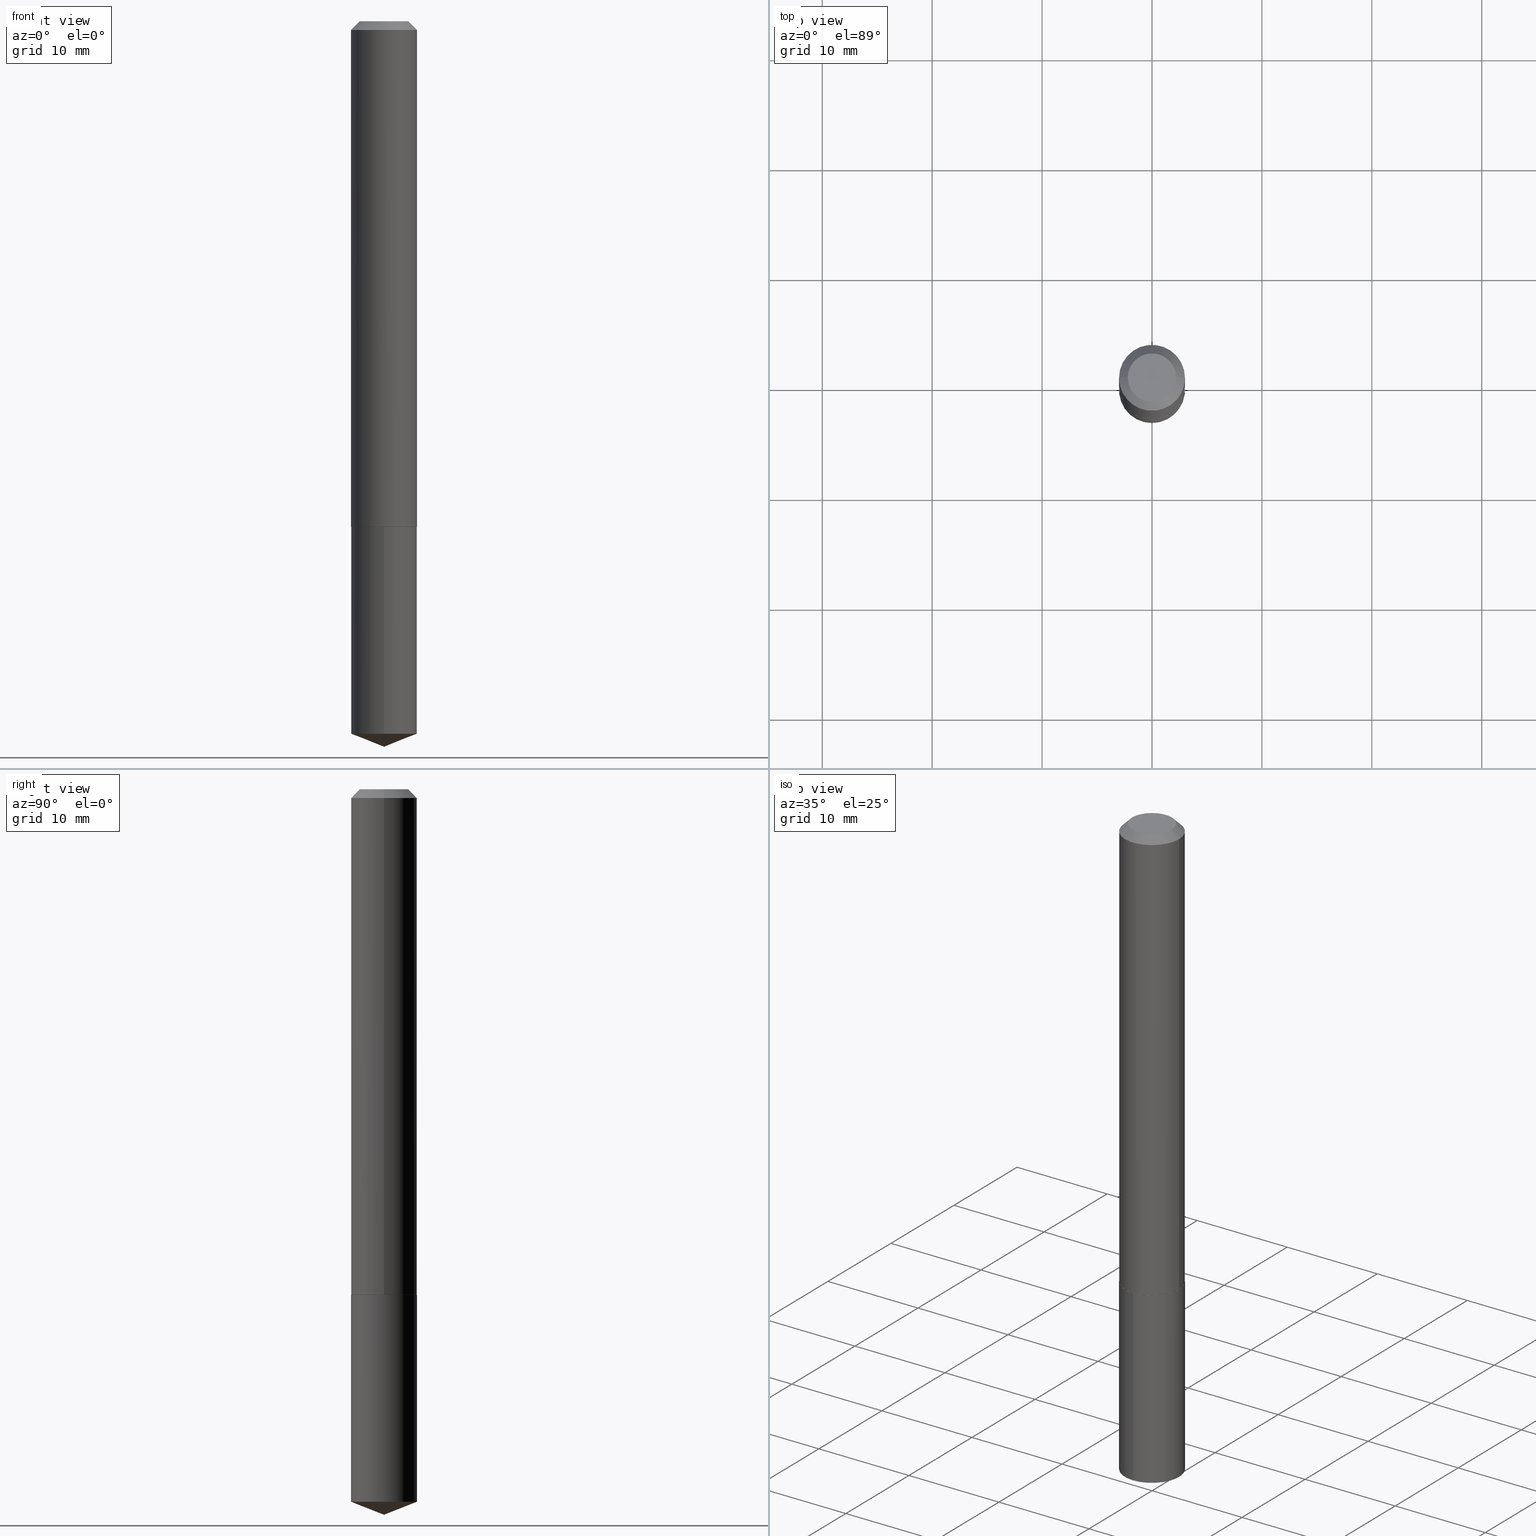
[diagram: canonical four-view strip — front | top / right | iso, engineering-drawing reading convention]
A machine part, canonical four-view strip (front | top / right | iso — engineering-drawing reading convention). The complete STEP part file that produces these views, byte-faithful:
ISO-10303-21;
HEADER;
FILE_DESCRIPTION (( 'STEP AP203' ),
    '1' );
FILE_NAME ('66430.STEP',
    '2024-04-23T12:50:24',
    ( '' ),
    ( '' ),
    'SwSTEP 2.0',
    'SolidWorks 2023',
    '' );
FILE_SCHEMA (( 'CONFIG_CONTROL_DESIGN' ));
ENDSEC;

DATA;
#1 = FACE_OUTER_BOUND ( 'NONE', #236, .T. ) ;
#2 = VECTOR ( 'NONE', #192, 39.37007874015748143 ) ;
#3 = CYLINDRICAL_SURFACE ( 'NONE', #261, 0.1181000000000001215 ) ;
#4 = ORIENTED_EDGE ( 'NONE', *, *, #358, .T. ) ;
#5 = MANIFOLD_SOLID_BREP ( 'Body-Move/Copy2[1]', #204 ) ;
#6 = COORDINATED_UNIVERSAL_TIME_OFFSET ( 5, 0, .BEHIND. ) ;
#7 = EDGE_CURVE ( 'NONE', #353, #266, #88, .T. ) ;
#8 = DIRECTION ( 'NONE',  ( 2.445468806185136597E-29, -3.491481338843145583E-15, -1.000000000000000000 ) ) ;
#9 = LOCAL_TIME ( 8, 50, 24.00000000000000000, #197 ) ;
#10 = EDGE_LOOP ( 'NONE', ( #159, #301, #288, #242 ) ) ;
#11 = APPROVAL_ROLE ( '' ) ;
#12 = AXIS2_PLACEMENT_3D ( 'NONE', #96, #129, #132 ) ;
#13 = CARTESIAN_POINT ( 'NONE',  ( -0.1176000000000006762, -5.484825220216944340E-15, -1.810999999999999943 ) ) ;
#14 = VERTEX_POINT ( 'NONE', #227 ) ;
#15 = DIRECTION ( 'NONE',  ( -6.497071151882117470E-15, -0.9304175679820243516, 0.3665012267242979127 ) ) ;
#16 = CARTESIAN_POINT ( 'NONE',  ( -8.990949888775337144E-28, 1.284083869569900402E-13, 36.77167874015748339 ) ) ;
#17 = APPROVAL_DATE_TIME ( #384, #230 ) ;
#18 = AXIS2_PLACEMENT_3D ( 'NONE', #292, #63, #30 ) ;
#19 = DATE_AND_TIME ( #285, #33 ) ;
#20 = PERSON_AND_ORGANIZATION_ROLE ( 'design_supplier' ) ;
#21 = APPLICATION_CONTEXT ( 'configuration controlled 3d designs of mechanical parts and assemblies' ) ;
#22 = CC_DESIGN_SECURITY_CLASSIFICATION ( #328, ( #127 ) ) ;
#23 = PERSON_AND_ORGANIZATION_ROLE ( 'creator' ) ;
#24 = CIRCLE ( 'NONE', #62, 0.1180999999999999966 ) ;
#25 = ORIENTED_EDGE ( 'NONE', *, *, #324, .F. ) ;
#26 = ORIENTED_EDGE ( 'NONE', *, *, #373, .F. ) ;
#27 = ORIENTED_EDGE ( 'NONE', *, *, #181, .T. ) ;
#28 = DIRECTION ( 'NONE',  ( -2.445468806185136597E-29, 3.491481338843145583E-15, 1.000000000000000000 ) ) ;
#29 = ADVANCED_FACE ( 'NONE', ( #71 ), #337, .T. ) ;
#30 = DIRECTION ( 'NONE',  ( 6.982962677686265922E-15, 1.000000000000000000, -3.492019322168117950E-15 ) ) ;
#31 = CARTESIAN_POINT ( 'NONE',  ( 4.428744008001282238E-29, -6.323072704644935995E-15, -1.810999999999999943 ) ) ;
#32 = DIRECTION ( 'NONE',  ( -2.445468806185136597E-29, 3.491481338843145583E-15, 1.000000000000000000 ) ) ;
#33 = LOCAL_TIME ( 8, 50, 24.00000000000000000, #203 ) ;
#34 = PRODUCT_DEFINITION ( 'UNKNOWN', '', #127, #297 ) ;
#35 = ORIENTED_EDGE ( 'NONE', *, *, #175, .T. ) ;
#36 = FACE_OUTER_BOUND ( 'NONE', #202, .T. ) ;
#37 = CONICAL_SURFACE ( 'NONE', #276, 0.1180999999999999966, 0.7853981633974450594 ) ;
#38 = EDGE_LOOP ( 'NONE', ( #93, #125, #195, #212 ) ) ;
#39 = CARTESIAN_POINT ( 'NONE',  ( -0.1181000000000002326, -5.482175993042835505E-15, -1.810499999999999998 ) ) ;
#40 = LINE ( 'NONE', #74, #107 ) ;
#41 = EDGE_CURVE ( 'NONE', #271, #14, #379, .T. ) ;
#42 = CIRCLE ( 'NONE', #237, 0.08684999999999999665 ) ;
#43 = CARTESIAN_POINT ( 'NONE',  ( 6.240262586935111587E-29, -8.910237091558793820E-15, -2.551879172829875309 ) ) ;
#44 = ORIENTED_EDGE ( 'NONE', *, *, #175, .F. ) ;
#45 = DIRECTION ( 'NONE',  ( 1.000000000000000000, -6.982962677686266711E-15, 0.000000000000000000 ) ) ;
#46 = FACE_OUTER_BOUND ( 'NONE', #83, .T. ) ;
#47 = DIRECTION ( 'NONE',  ( -2.445093134437186634E-29, 3.492019322168117950E-15, 1.000000000000000000 ) ) ;
#48 = PERSON_AND_ORGANIZATION ( #110, #282 ) ;
#49 = EDGE_CURVE ( 'NONE', #333, #338, #24, .T. ) ;
#50 = LINE ( 'NONE', #226, #161 ) ;
#51 = EDGE_CURVE ( 'NONE', #248, #389, #131, .T. ) ;
#52 = VECTOR ( 'NONE', #133, 39.37007874015748143 ) ;
#53 = APPROVAL_DATE_TIME ( #170, #108 ) ;
#54 = CARTESIAN_POINT ( 'NONE',  ( 7.642090019328603538E-31, -1.091087918388490390E-16, -0.03125000000000021511 ) ) ;
#55 = CONICAL_SURFACE ( 'NONE', #174, 99.94676754583970535, 1.195550537616118625 ) ;
#56 = ORIENTED_EDGE ( 'NONE', *, *, #324, .T. ) ;
#57 = CARTESIAN_POINT ( 'NONE',  ( 4.428744008001282238E-29, -6.323072704644935995E-15, -1.810999999999999943 ) ) ;
#58 = VERTEX_POINT ( 'NONE', #13 ) ;
#59 = CARTESIAN_POINT ( 'NONE',  ( 7.642090019328603538E-31, -1.091087918388490390E-16, -0.03125000000000021511 ) ) ;
#60 = AXIS2_PLACEMENT_3D ( 'NONE', #31, #245, #187 ) ;
#61 = CARTESIAN_POINT ( 'NONE',  ( 4.427521273598189436E-29, -6.321326963975514491E-15, -1.810499999999999998 ) ) ;
#62 = AXIS2_PLACEMENT_3D ( 'NONE', #251, #219, #306 ) ;
#63 = DIRECTION ( 'NONE',  ( 2.445093134437186353E-29, -3.492019322168117950E-15, -1.000000000000000000 ) ) ;
#64 = DIRECTION ( 'NONE',  ( -2.445093134437186634E-29, 3.492019322168117950E-15, 1.000000000000000000 ) ) ;
#65 = ADVANCED_FACE ( 'NONE', ( #279 ), #55, .T. ) ;
#66 = DIRECTION ( 'NONE',  ( 1.000000000000000000, -6.982962677686266711E-15, 4.876232708448512900E-29 ) ) ;
#67 = DIRECTION ( 'NONE',  ( 1.000000000000000000, -6.982962677686266711E-15, 4.876232708448512900E-29 ) ) ;
#68 = AXIS2_PLACEMENT_3D ( 'NONE', #73, #308, #191 ) ;
#69 = ADVANCED_FACE ( 'NONE', ( #46 ), #37, .T. ) ;
#70 = ORIENTED_EDGE ( 'NONE', *, *, #215, .T. ) ;
#71 = FACE_OUTER_BOUND ( 'NONE', #280, .T. ) ;
#72 = CONICAL_SURFACE ( 'NONE', #86, 0.1181000000000002326, 0.7853981633971067744 ) ;
#73 = CARTESIAN_POINT ( 'NONE',  ( 4.428744008001282238E-29, -6.323072704644935995E-15, -1.810999999999999943 ) ) ;
#74 = CARTESIAN_POINT ( 'NONE',  ( 6.353330000521585085E-29, -9.073663006721638693E-15, -2.598399999999999821 ) ) ;
#75 = DIRECTION ( 'NONE',  ( -2.438088387897960049E-29, 3.491481338843145188E-15, 1.000000000000000000 ) ) ;
#76 = EDGE_CURVE ( 'NONE', #250, #333, #50, .T. ) ;
#77 = APPROVAL_ROLE ( '' ) ;
#78 = AXIS2_PLACEMENT_3D ( 'NONE', #59, #28, #146 ) ;
#79 = CONICAL_SURFACE ( 'NONE', #387, 0.1181000000000002326, 0.7853981633971067744 ) ;
#80 = DATE_AND_TIME ( #106, #360 ) ;
#81 = PERSON_AND_ORGANIZATION ( #110, #282 ) ;
#82 = CARTESIAN_POINT ( 'NONE',  ( 6.353330000521585085E-29, -9.073663006721638693E-15, -2.598399999999999821 ) ) ;
#83 = EDGE_LOOP ( 'NONE', ( #374, #4, #56, #112 ) ) ;
#84 = DIRECTION ( 'NONE',  ( -2.445468806185136877E-29, 3.491481338843145188E-15, 1.000000000000000000 ) ) ;
#85 = DIRECTION ( 'NONE',  ( -2.445093134437186634E-29, 3.492019322168117950E-15, 1.000000000000000000 ) ) ;
#86 = AXIS2_PLACEMENT_3D ( 'NONE', #222, #160, #45 ) ;
#87 = DIRECTION ( 'NONE',  ( -6.982962677686265922E-15, -1.000000000000000000, 4.626330217890369336E-15 ) ) ;
#88 = CIRCLE ( 'NONE', #12, 0.1181000000000002326 ) ;
#89 = CARTESIAN_POINT ( 'NONE',  ( 8.391509709327224719E-16, 0.1180999999999936823, -1.811000000000000387 ) ) ;
#90 = LINE ( 'NONE', #89, #113 ) ;
#91 = FACE_OUTER_BOUND ( 'NONE', #10, .T. ) ;
#92 = CC_DESIGN_PERSON_AND_ORGANIZATION_ASSIGNMENT ( #382, #349, ( #328 ) ) ;
#93 = ORIENTED_EDGE ( 'NONE', *, *, #181, .F. ) ;
#94 = ORIENTED_EDGE ( 'NONE', *, *, #358, .F. ) ;
#95 = VECTOR ( 'NONE', #326, 39.37007874015748143 ) ;
#96 = CARTESIAN_POINT ( 'NONE',  ( 4.427521273598189436E-29, -6.321326963975514491E-15, -1.810499999999999998 ) ) ;
#97 = CARTESIAN_POINT ( 'NONE',  ( 4.428744008001282238E-29, -6.323072704644935995E-15, -1.810999999999999943 ) ) ;
#98 = DIRECTION ( 'NONE',  ( -2.445093134437186634E-29, 3.492019322168117950E-15, 1.000000000000000000 ) ) ;
#99 = CARTESIAN_POINT ( 'NONE',  ( 1.474956506360344439E-47, -2.105846987104261168E-33, -6.031385485800719294E-19 ) ) ;
#100 =( GEOMETRIC_REPRESENTATION_CONTEXT ( 3 ) GLOBAL_UNCERTAINTY_ASSIGNED_CONTEXT ( ( #232 ) ) GLOBAL_UNIT_ASSIGNED_CONTEXT ( ( #157, #155, #332 ) ) REPRESENTATION_CONTEXT ( 'NONE', 'WORKASPACE' ) );
#101 = DIRECTION ( 'NONE',  ( 2.445468806185136597E-29, -3.491481338843145583E-15, -1.000000000000000000 ) ) ;
#102 = ORIENTED_EDGE ( 'NONE', *, *, #207, .T. ) ;
#103 = DIRECTION ( 'NONE',  ( -2.445093134437186634E-29, 3.492019322168117950E-15, 1.000000000000000000 ) ) ;
#104 = EDGE_CURVE ( 'NONE', #190, #353, #263, .T. ) ;
#105 = CIRCLE ( 'NONE', #318, 0.1180999999999999966 ) ;
#106 = CALENDAR_DATE ( 2024, 23, 4 ) ;
#107 = VECTOR ( 'NONE', #15, 39.37007874015748854 ) ;
#108 = APPROVAL ( #172, 'UNSPECIFIED' ) ;
#109 = PERSON_AND_ORGANIZATION_ROLE ( 'creator' ) ;
#110 = PERSON ( 'UNSPECIFIED', 'UNSPECIFIED', 'UNSPECIFIED', ('UNSPECIFIED'), ('UNSPECIFIED'), ('UNSPECIFIED') ) ;
#111 = DIRECTION ( 'NONE',  ( -2.445093134437186634E-29, 3.492019322168117950E-15, 1.000000000000000000 ) ) ;
#112 = ORIENTED_EDGE ( 'NONE', *, *, #76, .F. ) ;
#113 = VECTOR ( 'NONE', #390, 39.37007874015748143 ) ;
#114 = APPROVAL_PERSON_ORGANIZATION ( #344, #230, #11 ) ;
#115 = DIRECTION ( 'NONE',  ( -2.445468806185136597E-29, 3.491481338843145583E-15, 1.000000000000000000 ) ) ;
#116 = EDGE_CURVE ( 'NONE', #14, #271, #217, .T. ) ;
#117 = AXIS2_PLACEMENT_3D ( 'NONE', #316, #173, #210 ) ;
#118 = EDGE_LOOP ( 'NONE', ( #26, #35, #372 ) ) ;
#119 = CARTESIAN_POINT ( 'NONE',  ( 0.1180999999999999966, -9.337966840735971660E-16, -0.03125000000000021511 ) ) ;
#120 = CARTESIAN_POINT ( 'NONE',  ( 8.391509709327405171E-16, 0.1180999999999936684, -1.811000000000000387 ) ) ;
#121 = ADVANCED_FACE ( 'NONE', ( #177 ), #278, .F. ) ;
#122 = ORIENTED_EDGE ( 'NONE', *, *, #234, .F. ) ;
#123 = LINE ( 'NONE', #124, #139 ) ;
#124 = CARTESIAN_POINT ( 'NONE',  ( 6.354702615177035786E-29, -9.071714431118589022E-15, -2.598399999999999821 ) ) ;
#125 = ORIENTED_EDGE ( 'NONE', *, *, #136, .T. ) ;
#126 = DIRECTION ( 'NONE',  ( 2.438088387897960049E-29, -3.491481338843145188E-15, -1.000000000000000000 ) ) ;
#127 = PRODUCT_DEFINITION_FORMATION_WITH_SPECIFIED_SOURCE ( 'ANY', '', #128, .NOT_KNOWN. ) ;
#128 = PRODUCT ( '66430', '66430', '', ( #137 ) ) ;
#129 = DIRECTION ( 'NONE',  ( -2.445468806185136597E-29, 3.491481338843145583E-15, 1.000000000000000000 ) ) ;
#130 = CARTESIAN_POINT ( 'NONE',  ( 0.000000000000000000, 0.000000000000000000, 0.000000000000000000 ) ) ;
#131 = CIRCLE ( 'NONE', #283, 0.1180999999999999966 ) ;
#132 = DIRECTION ( 'NONE',  ( 1.000000000000000000, -6.982962677686266711E-15, 0.000000000000000000 ) ) ;
#133 = DIRECTION ( 'NONE',  ( -0.7071067811863059882, 7.493145998869481680E-15, 0.7071067811867890462 ) ) ;
#134 = CARTESIAN_POINT ( 'NONE',  ( 4.428744008001282238E-29, -6.323072704644935995E-15, -1.810999999999999943 ) ) ;
#135 = VERTEX_POINT ( 'NONE', #82 ) ;
#136 = EDGE_CURVE ( 'NONE', #266, #353, #255, .T. ) ;
#137 = MECHANICAL_CONTEXT ( 'NONE', #21, 'mechanical' ) ;
#138 = COORDINATED_UNIVERSAL_TIME_OFFSET ( 5, 0, .BEHIND. ) ;
#139 = VECTOR ( 'NONE', #246, 39.37007874015748143 ) ;
#140 = MANIFOLD_SOLID_BREP ( 'Body-Move/Copy2[2]', #378 ) ;
#141 = CC_DESIGN_APPROVAL ( #108, ( #127 ) ) ;
#142 = DIRECTION ( 'NONE',  ( -2.445093134437186634E-29, 3.492019322168117950E-15, 1.000000000000000000 ) ) ;
#143 = EDGE_LOOP ( 'NONE', ( #94, #176, #158, #343 ) ) ;
#144 = EDGE_CURVE ( 'NONE', #389, #248, #105, .T. ) ;
#145 = AXIS2_PLACEMENT_3D ( 'NONE', #97, #103, #364 ) ;
#146 = DIRECTION ( 'NONE',  ( 1.000000000000000000, -6.982962677686266711E-15, 0.000000000000000000 ) ) ;
#147 = CIRCLE ( 'NONE', #330, 0.1176000000000006762 ) ;
#148 = DIRECTION ( 'NONE',  ( 1.000000000000000000, -6.982962677686269077E-15, 0.000000000000000000 ) ) ;
#149 = ADVANCED_BREP_SHAPE_REPRESENTATION ( '66430', ( #5, #140, #315 ), #100 ) ;
#150 = ORIENTED_EDGE ( 'NONE', *, *, #104, .F. ) ;
#151 = CARTESIAN_POINT ( 'NONE',  ( -8.246878922347036920E-16, -0.1181000000000063110, -1.810999999999999277 ) ) ;
#152 = LOCAL_TIME ( 8, 50, 24.00000000000000000, #138 ) ;
#153 = CARTESIAN_POINT ( 'NONE',  ( 0.1176000000000006762, -7.144269115540846772E-15, -1.810999999999999943 ) ) ;
#154 = CYLINDRICAL_SURFACE ( 'NONE', #366, 0.1181000000000001215 ) ;
#155 =( NAMED_UNIT ( * ) PLANE_ANGLE_UNIT ( ) SI_UNIT ( $, .RADIAN. ) );
#156 = PRODUCT_RELATED_PRODUCT_CATEGORY ( 'detail', '', ( #128 ) ) ;
#157 =( CONVERSION_BASED_UNIT ( 'INCH', #335 ) LENGTH_UNIT ( ) NAMED_UNIT ( #196 ) );
#158 = ORIENTED_EDGE ( 'NONE', *, *, #76, .T. ) ;
#159 = ORIENTED_EDGE ( 'NONE', *, *, #51, .T. ) ;
#160 = DIRECTION ( 'NONE',  ( -2.445468806185136597E-29, 3.491481338843145583E-15, 1.000000000000000000 ) ) ;
#161 = VECTOR ( 'NONE', #348, 39.37007874015748143 ) ;
#162 = ADVANCED_FACE ( 'NONE', ( #1 ), #354, .T. ) ;
#163 = DIRECTION ( 'NONE',  ( -1.000000000000000000, 6.982962677686266711E-15, 0.000000000000000000 ) ) ;
#164 = CARTESIAN_POINT ( 'NONE',  ( 4.428744008001282238E-29, -6.323072704644935995E-15, -1.810999999999999943 ) ) ;
#165 = DIRECTION ( 'NONE',  ( 0.000000000000000000, 0.000000000000000000, 1.000000000000000000 ) ) ;
#166 = APPROVAL_STATUS ( 'not_yet_approved' ) ;
#167 = SHAPE_DEFINITION_REPRESENTATION ( #327, #149 ) ;
#168 = CC_DESIGN_PERSON_AND_ORGANIZATION_ASSIGNMENT ( #383, #20, ( #127 ) ) ;
#169 = DATE_TIME_ROLE ( 'classification_date' ) ;
#170 = DATE_AND_TIME ( #260, #9 ) ;
#171 = VECTOR ( 'NONE', #85, 39.37007874015748143 ) ;
#172 = APPROVAL_STATUS ( 'not_yet_approved' ) ;
#173 = DIRECTION ( 'NONE',  ( -2.445468806185136597E-29, 3.491481338843145583E-15, 1.000000000000000000 ) ) ;
#174 = AXIS2_PLACEMENT_3D ( 'NONE', #16, #142, #206 ) ;
#175 = EDGE_CURVE ( 'NONE', #135, #389, #123, .T. ) ;
#176 = ORIENTED_EDGE ( 'NONE', *, *, #207, .F. ) ;
#177 = FACE_OUTER_BOUND ( 'NONE', #218, .T. ) ;
#178 = CARTESIAN_POINT ( 'NONE',  ( -0.1181000000000001215, 8.391509709326791832E-16, -5.809262341591049389E-30 ) ) ;
#179 = APPROVAL_PERSON_ORGANIZATION ( #259, #108, #77 ) ;
#180 = CARTESIAN_POINT ( 'NONE',  ( 0.1181000000000001215, -8.246878922347489529E-16, 5.758764772215006046E-30 ) ) ;
#181 = EDGE_CURVE ( 'NONE', #266, #333, #386, .T. ) ;
#182 = ORIENTED_EDGE ( 'NONE', *, *, #104, .T. ) ;
#183 = CARTESIAN_POINT ( 'NONE',  ( 4.428744008001282238E-29, -6.323072704644935995E-15, -1.810999999999999943 ) ) ;
#184 = EDGE_LOOP ( 'NONE', ( #102, #209 ) ) ;
#185 = DIRECTION ( 'NONE',  ( 1.000000000000000000, -6.982962677686266711E-15, 4.876176775795935793E-29 ) ) ;
#186 = ORIENTED_EDGE ( 'NONE', *, *, #240, .T. ) ;
#187 = DIRECTION ( 'NONE',  ( 1.000000000000000000, -6.982962677686269077E-15, 0.000000000000000000 ) ) ;
#188 = VECTOR ( 'NONE', #84, 39.37007874015748143 ) ;
#189 = AXIS2_PLACEMENT_3D ( 'NONE', #323, #64, #238 ) ;
#190 = VERTEX_POINT ( 'NONE', #153 ) ;
#191 = DIRECTION ( 'NONE',  ( -6.982962677686265922E-15, -1.000000000000000000, 4.626330217890369336E-15 ) ) ;
#192 = DIRECTION ( 'NONE',  ( 0.7071067811865452413, -7.319954787623248157E-15, -0.7071067811865497932 ) ) ;
#193 = CC_DESIGN_APPROVAL ( #289, ( #328 ) ) ;
#194 = CC_DESIGN_PERSON_AND_ORGANIZATION_ASSIGNMENT ( #48, #377, ( #128 ) ) ;
#195 = ORIENTED_EDGE ( 'NONE', *, *, #262, .T. ) ;
#196 = DIMENSIONAL_EXPONENTS ( 1.000000000000000000, 0.000000000000000000, 0.000000000000000000, 0.000000000000000000, 0.000000000000000000, 0.000000000000000000, 0.000000000000000000 ) ;
#197 = COORDINATED_UNIVERSAL_TIME_OFFSET ( 5, 0, .BEHIND. ) ;
#198 = DIRECTION ( 'NONE',  ( 0.7071067811863059882, -2.468850131079726789E-15, 0.7071067811867890462 ) ) ;
#199 = APPROVAL_ROLE ( '' ) ;
#200 = ADVANCED_FACE ( 'NONE', ( #290 ), #241, .F. ) ;
#201 = APPROVAL_PERSON_ORGANIZATION ( #231, #289, #199 ) ;
#202 = EDGE_LOOP ( 'NONE', ( #221, #223, #367, #150 ) ) ;
#203 = COORDINATED_UNIVERSAL_TIME_OFFSET ( 5, 0, .BEHIND. ) ;
#204 = CLOSED_SHELL ( 'NONE', ( #365, #65, #162, #29, #200 ) ) ;
#205 = FACE_OUTER_BOUND ( 'NONE', #38, .T. ) ;
#206 = DIRECTION ( 'NONE',  ( -6.982962677686266711E-15, -1.000000000000000000, 3.498627837350013689E-15 ) ) ;
#207 = EDGE_CURVE ( 'NONE', #250, #298, #239, .T. ) ;
#208 = CARTESIAN_POINT ( 'NONE',  ( 0.08684999999999999665, -7.575839282410621061E-16, -1.206277097155374871E-18 ) ) ;
#209 = ORIENTED_EDGE ( 'NONE', *, *, #385, .T. ) ;
#210 = DIRECTION ( 'NONE',  ( 1.000000000000000000, -6.982962677686266711E-15, 0.000000000000000000 ) ) ;
#211 = AXIS2_PLACEMENT_3D ( 'NONE', #164, #47, #370 ) ;
#212 = ORIENTED_EDGE ( 'NONE', *, *, #49, .F. ) ;
#213 = FACE_OUTER_BOUND ( 'NONE', #287, .T. ) ;
#214 = DIRECTION ( 'NONE',  ( -2.445093134437186634E-29, 3.492019322168117950E-15, 1.000000000000000000 ) ) ;
#215 = EDGE_CURVE ( 'NONE', #58, #190, #147, .T. ) ;
#216 = LINE ( 'NONE', #39, #52 ) ;
#217 = CIRCLE ( 'NONE', #342, 0.1180999999999999966 ) ;
#218 = EDGE_LOOP ( 'NONE', ( #122, #331 ) ) ;
#219 = DIRECTION ( 'NONE',  ( -2.445468806185136597E-29, 3.491481338843145583E-15, 1.000000000000000000 ) ) ;
#220 = ADVANCED_FACE ( 'NONE', ( #36 ), #79, .T. ) ;
#221 = ORIENTED_EDGE ( 'NONE', *, *, #234, .T. ) ;
#222 = CARTESIAN_POINT ( 'NONE',  ( 4.427521273598189436E-29, -6.321326963975514491E-15, -1.810499999999999998 ) ) ;
#223 = ORIENTED_EDGE ( 'NONE', *, *, #388, .T. ) ;
#224 = ORIENTED_EDGE ( 'NONE', *, *, #136, .F. ) ;
#225 = LINE ( 'NONE', #249, #2 ) ;
#226 = CARTESIAN_POINT ( 'NONE',  ( -0.1180999999999999966, 7.155791003958990633E-16, -0.03125000000000021511 ) ) ;
#227 = CARTESIAN_POINT ( 'NONE',  ( -8.246878922347036920E-16, -0.1181000000000063110, -1.810999999999999277 ) ) ;
#228 = APPLICATION_PROTOCOL_DEFINITION ( 'international standard', 'config_control_design', 1994, #258 ) ;
#229 = DATE_TIME_ROLE ( 'creation_date' ) ;
#230 = APPROVAL ( #166, 'UNSPECIFIED' ) ;
#231 = PERSON_AND_ORGANIZATION ( #110, #282 ) ;
#232 = UNCERTAINTY_MEASURE_WITH_UNIT (LENGTH_MEASURE( 1.000000000000000082E-05 ), #157, 'distance_accuracy_value', 'NONE');
#233 = CALENDAR_DATE ( 2024, 23, 4 ) ;
#234 = EDGE_CURVE ( 'NONE', #190, #58, #369, .T. ) ;
#235 = DIRECTION ( 'NONE',  ( 1.000000000000000000, -6.982962677686265922E-15, 4.876176775795935793E-29 ) ) ;
#236 = EDGE_LOOP ( 'NONE', ( #44, #274, #334 ) ) ;
#237 = AXIS2_PLACEMENT_3D ( 'NONE', #252, #368, #67 ) ;
#238 = DIRECTION ( 'NONE',  ( -6.982962677686266711E-15, -1.000000000000000000, 3.498627837350013689E-15 ) ) ;
#239 = CIRCLE ( 'NONE', #347, 0.08684999999999999665 ) ;
#240 = EDGE_CURVE ( 'NONE', #248, #14, #267, .T. ) ;
#241 = PLANE ( 'NONE',  #18 ) ;
#242 = ORIENTED_EDGE ( 'NONE', *, *, #240, .F. ) ;
#243 = CARTESIAN_POINT ( 'NONE',  ( 6.240262586935111587E-29, -8.910237091558793820E-15, -2.551879172829875309 ) ) ;
#244 = ORIENTED_EDGE ( 'NONE', *, *, #116, .T. ) ;
#245 = DIRECTION ( 'NONE',  ( -2.445468806185136597E-29, 3.491481338843145583E-15, 1.000000000000000000 ) ) ;
#246 = DIRECTION ( 'NONE',  ( 6.611014441532064222E-15, 0.9304175679820269051, 0.3665012267242913624 ) ) ;
#247 = CC_DESIGN_DATE_AND_TIME_ASSIGNMENT ( #380, #229, ( #34 ) ) ;
#248 = VERTEX_POINT ( 'NONE', #355 ) ;
#249 = CARTESIAN_POINT ( 'NONE',  ( 0.1180999999999999966, -9.193336053756670343E-16, -0.03125000000000021511 ) ) ;
#250 = VERTEX_POINT ( 'NONE', #299 ) ;
#251 = CARTESIAN_POINT ( 'NONE',  ( 7.642090019328603538E-31, -1.091087918388490390E-16, -0.03125000000000021511 ) ) ;
#252 = CARTESIAN_POINT ( 'NONE',  ( 2.949913012720688878E-47, -4.211693974208522336E-33, -1.206277097160143859E-18 ) ) ;
#253 = ORIENTED_EDGE ( 'NONE', *, *, #268, .F. ) ;
#254 = CARTESIAN_POINT ( 'NONE',  ( 0.1181000000000002326, -7.146014856210264332E-15, -1.810499999999999998 ) ) ;
#255 = CIRCLE ( 'NONE', #117, 0.1181000000000002326 ) ;
#256 = APPROVAL_DATE_TIME ( #19, #289 ) ;
#257 = CC_DESIGN_PERSON_AND_ORGANIZATION_ASSIGNMENT ( #284, #23, ( #127 ) ) ;
#258 = APPLICATION_CONTEXT ( 'configuration controlled 3d designs of mechanical parts and assemblies' ) ;
#259 = PERSON_AND_ORGANIZATION ( #110, #282 ) ;
#260 = CALENDAR_DATE ( 2024, 23, 4 ) ;
#261 = AXIS2_PLACEMENT_3D ( 'NONE', #325, #115, #185 ) ;
#262 = EDGE_CURVE ( 'NONE', #353, #338, #362, .T. ) ;
#263 = LINE ( 'NONE', #311, #300 ) ;
#264 = CARTESIAN_POINT ( 'NONE',  ( -0.1180999999999999966, -2.376066906974501232E-15, -0.03125000000000021511 ) ) ;
#265 = CARTESIAN_POINT ( 'NONE',  ( -0.1181000000000002326, -5.482175993042835505E-15, -1.810499999999999998 ) ) ;
#266 = VERTEX_POINT ( 'NONE', #265 ) ;
#267 = LINE ( 'NONE', #151, #171 ) ;
#268 = EDGE_CURVE ( 'NONE', #389, #271, #90, .T. ) ;
#269 = CARTESIAN_POINT ( 'NONE',  ( 2.949913012720688878E-47, -4.211693974208522336E-33, -1.206277097160143859E-18 ) ) ;
#270 = AXIS2_PLACEMENT_3D ( 'NONE', #134, #75, #235 ) ;
#271 = VERTEX_POINT ( 'NONE', #120 ) ;
#272 = DIRECTION ( 'NONE',  ( -2.445468806185136597E-29, 3.491481338843145583E-15, 1.000000000000000000 ) ) ;
#273 = CARTESIAN_POINT ( 'NONE',  ( 7.642090019328603538E-31, -1.091087918388490390E-16, -0.03125000000000021511 ) ) ;
#274 = ORIENTED_EDGE ( 'NONE', *, *, #373, .T. ) ;
#275 = DIRECTION ( 'NONE',  ( 1.000000000000000000, 0.000000000000000000, 0.000000000000000000 ) ) ;
#276 = AXIS2_PLACEMENT_3D ( 'NONE', #54, #101, #163 ) ;
#277 = DIRECTION ( 'NONE',  ( -6.982962677686265922E-15, -1.000000000000000000, 4.626330217890369336E-15 ) ) ;
#278 = PLANE ( 'NONE',  #270 ) ;
#279 = FACE_OUTER_BOUND ( 'NONE', #118, .T. ) ;
#280 = EDGE_LOOP ( 'NONE', ( #253, #295, #186, #307 ) ) ;
#281 = FACE_OUTER_BOUND ( 'NONE', #143, .T. ) ;
#282 = ORGANIZATION ( 'UNSPECIFIED', 'UNSPECIFIED', '' ) ;
#283 = AXIS2_PLACEMENT_3D ( 'NONE', #43, #98, #277 ) ;
#284 = PERSON_AND_ORGANIZATION ( #110, #282 ) ;
#285 = CALENDAR_DATE ( 2024, 23, 4 ) ;
#286 = CALENDAR_DATE ( 2024, 23, 4 ) ;
#287 = EDGE_LOOP ( 'NONE', ( #376, #27, #25, #317 ) ) ;
#288 = ORIENTED_EDGE ( 'NONE', *, *, #116, .F. ) ;
#289 = APPROVAL ( #313, 'UNSPECIFIED' ) ;
#290 = FACE_OUTER_BOUND ( 'NONE', #350, .T. ) ;
#291 = LOCAL_TIME ( 8, 50, 24.00000000000000000, #6 ) ;
#292 = CARTESIAN_POINT ( 'NONE',  ( 4.428744008001282238E-29, -6.323072704644935995E-15, -1.810999999999999943 ) ) ;
#293 = ORIENTED_EDGE ( 'NONE', *, *, #41, .T. ) ;
#294 = DIRECTION ( 'NONE',  ( 1.000000000000000000, -6.982962677686266711E-15, 0.000000000000000000 ) ) ;
#295 = ORIENTED_EDGE ( 'NONE', *, *, #144, .T. ) ;
#296 = CARTESIAN_POINT ( 'NONE',  ( 0.000000000000000000, 0.000000000000000000, 0.000000000000000000 ) ) ;
#297 = DESIGN_CONTEXT ( 'detailed design', #258, 'design' ) ;
#298 = VERTEX_POINT ( 'NONE', #208 ) ;
#299 = CARTESIAN_POINT ( 'NONE',  ( -0.08684999999999999665, 6.610247044764755977E-16, -1.206277097164575809E-18 ) ) ;
#300 = VECTOR ( 'NONE', #198, 39.37007874015748143 ) ;
#301 = ORIENTED_EDGE ( 'NONE', *, *, #268, .T. ) ;
#302 = ADVANCED_FACE ( 'NONE', ( #213 ), #3, .T. ) ;
#303 = FACE_OUTER_BOUND ( 'NONE', #356, .T. ) ;
#304 = CYLINDRICAL_SURFACE ( 'NONE', #145, 0.1180999999999999966 ) ;
#305 = CONICAL_SURFACE ( 'NONE', #336, 0.1180999999999999966, 0.7853981633974450594 ) ;
#306 = DIRECTION ( 'NONE',  ( 1.000000000000000000, -6.982962677686266711E-15, 0.000000000000000000 ) ) ;
#307 = ORIENTED_EDGE ( 'NONE', *, *, #41, .F. ) ;
#308 = DIRECTION ( 'NONE',  ( -2.445093134437186634E-29, 3.492019322168117950E-15, 1.000000000000000000 ) ) ;
#309 = CARTESIAN_POINT ( 'NONE',  ( 8.391509709327405171E-16, 0.1180999999999911010, -2.551879172829876197 ) ) ;
#310 = CC_DESIGN_PERSON_AND_ORGANIZATION_ASSIGNMENT ( #81, #109, ( #34 ) ) ;
#311 = CARTESIAN_POINT ( 'NONE',  ( 0.1181000000000002326, -7.146014856210264332E-15, -1.810499999999999998 ) ) ;
#312 = APPLICATION_PROTOCOL_DEFINITION ( 'international standard', 'config_control_design', 1994, #21 ) ;
#313 = APPROVAL_STATUS ( 'not_yet_approved' ) ;
#314 = SECURITY_CLASSIFICATION_LEVEL ( 'unclassified' ) ;
#315 = AXIS2_PLACEMENT_3D ( 'NONE', #130, #165, #275 ) ;
#316 = CARTESIAN_POINT ( 'NONE',  ( 4.427521273598189436E-29, -6.321326963975514491E-15, -1.810499999999999998 ) ) ;
#317 = ORIENTED_EDGE ( 'NONE', *, *, #262, .F. ) ;
#318 = AXIS2_PLACEMENT_3D ( 'NONE', #243, #214, #87 ) ;
#319 = ADVANCED_FACE ( 'NONE', ( #205 ), #154, .T. ) ;
#320 = DIRECTION ( 'NONE',  ( 1.000000000000000000, -6.982962677686266711E-15, 4.876176775795935793E-29 ) ) ;
#321 = FACE_OUTER_BOUND ( 'NONE', #184, .T. ) ;
#322 = CC_DESIGN_APPROVAL ( #230, ( #34 ) ) ;
#323 = CARTESIAN_POINT ( 'NONE',  ( -8.990949888775337144E-28, 1.284083869569900402E-13, 36.77167874015748339 ) ) ;
#324 = EDGE_CURVE ( 'NONE', #338, #333, #375, .T. ) ;
#325 = CARTESIAN_POINT ( 'NONE',  ( 0.000000000000000000, 0.000000000000000000, 0.000000000000000000 ) ) ;
#326 = DIRECTION ( 'NONE',  ( -2.445468806185136877E-29, 3.491481338843145188E-15, 1.000000000000000000 ) ) ;
#327 = PRODUCT_DEFINITION_SHAPE ( 'NONE', 'NONE',  #34 ) ;
#328 = SECURITY_CLASSIFICATION ( '', '', #314 ) ;
#329 =( LENGTH_UNIT ( ) NAMED_UNIT ( * ) SI_UNIT ( $, .METRE. ) );
#330 = AXIS2_PLACEMENT_3D ( 'NONE', #183, #32, #148 ) ;
#331 = ORIENTED_EDGE ( 'NONE', *, *, #215, .F. ) ;
#332 =( NAMED_UNIT ( * ) SI_UNIT ( $, .STERADIAN. ) SOLID_ANGLE_UNIT ( ) );
#333 = VERTEX_POINT ( 'NONE', #264 ) ;
#334 = ORIENTED_EDGE ( 'NONE', *, *, #144, .F. ) ;
#335 = LENGTH_MEASURE_WITH_UNIT ( LENGTH_MEASURE( 0.02539999999999999897 ), #329 );
#336 = AXIS2_PLACEMENT_3D ( 'NONE', #273, #8, #339 ) ;
#337 = CYLINDRICAL_SURFACE ( 'NONE', #68, 0.1180999999999999966 ) ;
#338 = VERTEX_POINT ( 'NONE', #119 ) ;
#339 = DIRECTION ( 'NONE',  ( -1.000000000000000000, 6.982962677686266711E-15, 0.000000000000000000 ) ) ;
#340 = ADVANCED_FACE ( 'NONE', ( #321 ), #357, .F. ) ;
#341 = DIRECTION ( 'NONE',  ( -6.982962677686265922E-15, -1.000000000000000000, 4.626330217890369336E-15 ) ) ;
#342 = AXIS2_PLACEMENT_3D ( 'NONE', #57, #111, #341 ) ;
#343 = ORIENTED_EDGE ( 'NONE', *, *, #49, .T. ) ;
#344 = PERSON_AND_ORGANIZATION ( #110, #282 ) ;
#345 = COORDINATED_UNIVERSAL_TIME_OFFSET ( 5, 0, .BEHIND. ) ;
#346 = ADVANCED_FACE ( 'NONE', ( #281 ), #305, .T. ) ;
#347 = AXIS2_PLACEMENT_3D ( 'NONE', #269, #359, #66 ) ;
#348 = DIRECTION ( 'NONE',  ( -0.7071067811865452413, 2.468850131082233000E-15, -0.7071067811865497932 ) ) ;
#349 = PERSON_AND_ORGANIZATION_ROLE ( 'classification_officer' ) ;
#350 = EDGE_LOOP ( 'NONE', ( #244, #293 ) ) ;
#351 = AXIS2_PLACEMENT_3D ( 'NONE', #99, #126, #371 ) ;
#352 = CC_DESIGN_DATE_AND_TIME_ASSIGNMENT ( #80, #169, ( #328 ) ) ;
#353 = VERTEX_POINT ( 'NONE', #254 ) ;
#354 = CONICAL_SURFACE ( 'NONE', #189, 99.94676754583970535, 1.195550537616118625 ) ;
#355 = CARTESIAN_POINT ( 'NONE',  ( -8.246878922346856468E-16, -0.1181000000000089062, -2.551879172829874864 ) ) ;
#356 = EDGE_LOOP ( 'NONE', ( #361, #70, #182, #224 ) ) ;
#357 = PLANE ( 'NONE',  #351 ) ;
#358 = EDGE_CURVE ( 'NONE', #298, #338, #225, .T. ) ;
#359 = DIRECTION ( 'NONE',  ( -2.445468806185136597E-29, 3.491481338843145583E-15, 1.000000000000000000 ) ) ;
#360 = LOCAL_TIME ( 8, 50, 24.00000000000000000, #345 ) ;
#361 = ORIENTED_EDGE ( 'NONE', *, *, #388, .F. ) ;
#362 = LINE ( 'NONE', #180, #188 ) ;
#363 = DIRECTION ( 'NONE',  ( -2.445468806185136597E-29, 3.491481338843145583E-15, 1.000000000000000000 ) ) ;
#364 = DIRECTION ( 'NONE',  ( -6.982962677686265922E-15, -1.000000000000000000, 4.626330217890369336E-15 ) ) ;
#365 = ADVANCED_FACE ( 'NONE', ( #91 ), #304, .T. ) ;
#366 = AXIS2_PLACEMENT_3D ( 'NONE', #296, #272, #320 ) ;
#367 = ORIENTED_EDGE ( 'NONE', *, *, #7, .F. ) ;
#368 = DIRECTION ( 'NONE',  ( -2.445468806185136597E-29, 3.491481338843145583E-15, 1.000000000000000000 ) ) ;
#369 = CIRCLE ( 'NONE', #60, 0.1176000000000006762 ) ;
#370 = DIRECTION ( 'NONE',  ( -6.982962677686265922E-15, -1.000000000000000000, 4.626330217890369336E-15 ) ) ;
#371 = DIRECTION ( 'NONE',  ( -1.000000000000000000, 6.982962677686265922E-15, -4.876176775795935793E-29 ) ) ;
#372 = ORIENTED_EDGE ( 'NONE', *, *, #51, .F. ) ;
#373 = EDGE_CURVE ( 'NONE', #135, #248, #40, .T. ) ;
#374 = ORIENTED_EDGE ( 'NONE', *, *, #385, .F. ) ;
#375 = CIRCLE ( 'NONE', #78, 0.1180999999999999966 ) ;
#376 = ORIENTED_EDGE ( 'NONE', *, *, #7, .T. ) ;
#377 = PERSON_AND_ORGANIZATION_ROLE ( 'design_owner' ) ;
#378 = CLOSED_SHELL ( 'NONE', ( #69, #302, #220, #121, #381, #319, #346, #340 ) ) ;
#379 = CIRCLE ( 'NONE', #211, 0.1180999999999999966 ) ;
#380 = DATE_AND_TIME ( #286, #152 ) ;
#381 = ADVANCED_FACE ( 'NONE', ( #303 ), #72, .T. ) ;
#382 = PERSON_AND_ORGANIZATION ( #110, #282 ) ;
#383 = PERSON_AND_ORGANIZATION ( #110, #282 ) ;
#384 = DATE_AND_TIME ( #233, #291 ) ;
#385 = EDGE_CURVE ( 'NONE', #298, #250, #42, .T. ) ;
#386 = LINE ( 'NONE', #178, #95 ) ;
#387 = AXIS2_PLACEMENT_3D ( 'NONE', #61, #363, #294 ) ;
#388 = EDGE_CURVE ( 'NONE', #58, #266, #216, .T. ) ;
#389 = VERTEX_POINT ( 'NONE', #309 ) ;
#390 = DIRECTION ( 'NONE',  ( -2.445093134437186634E-29, 3.492019322168117950E-15, 1.000000000000000000 ) ) ;
ENDSEC;
END-ISO-10303-21;
